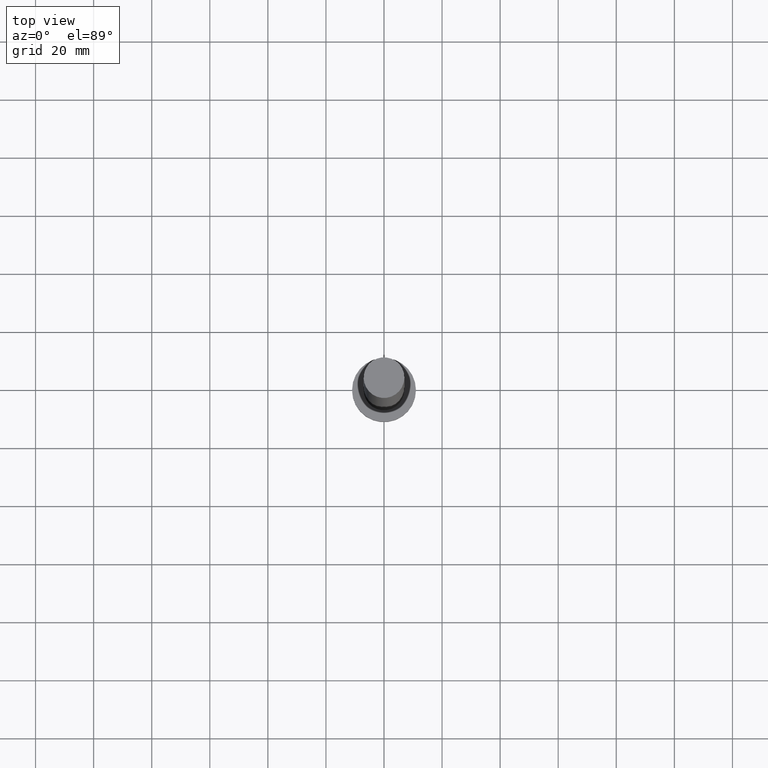
[diagram: clean part render]
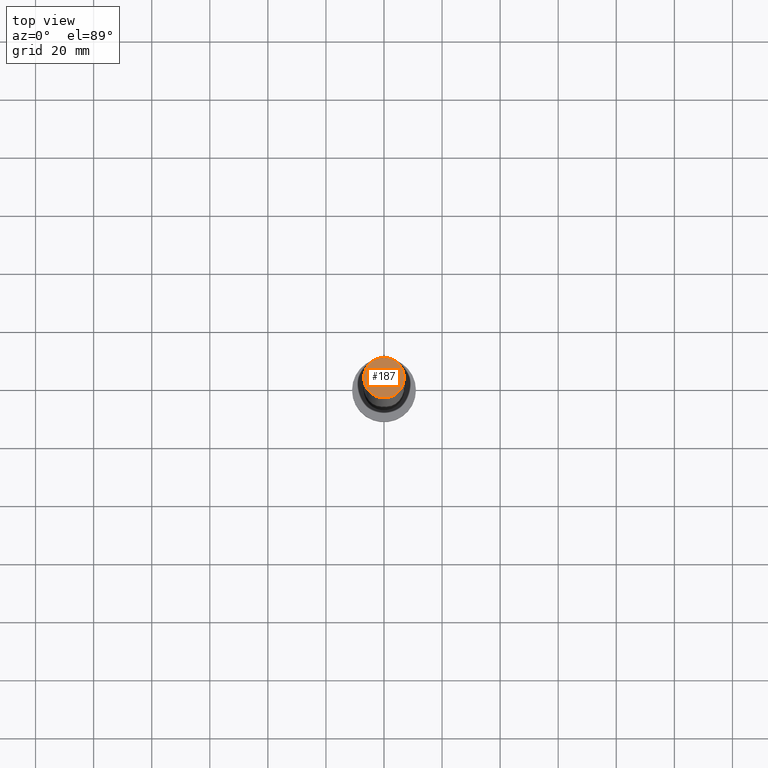
[diagram: same view with one face highlighted and labeled with its STEP entity id]
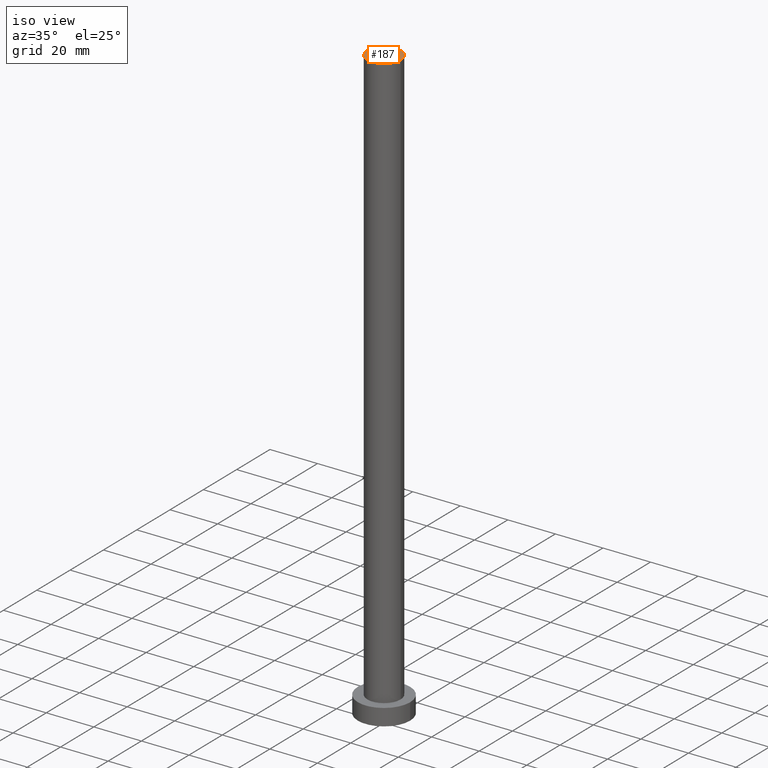
[diagram: same view with one face highlighted and labeled with its STEP entity id]
A machine part, top view. The second image highlights one B-rep face of the part: STEP entity #187.
A second angle (iso view) of the same face is appended — the face is thin or edge-on in the first view.
In plain terms, the highlighted planar face has unit normal (0, 0, 1).
Its self-contained STEP definition (entity closure, byte-faithful):
#7 = PLANE ( 'NONE',  #41 ) ;
#11 = ORIENTED_EDGE ( 'NONE', *, *, #94, .T. ) ;
#41 = AXIS2_PLACEMENT_3D ( 'NONE', #129, #128, #211 ) ;
#55 = CIRCLE ( 'NONE', #83, 7.000000000000000888 ) ;
#60 = VERTEX_POINT ( 'NONE', #249 ) ;
#62 = DIRECTION ( 'NONE',  ( 0.000000000000000000, 0.000000000000000000, 1.000000000000000000 ) ) ;
#63 = CARTESIAN_POINT ( 'NONE',  ( 0.000000000000000000, 0.000000000000000000, 250.0000000000000000 ) ) ;
#74 = VERTEX_POINT ( 'NONE', #252 ) ;
#77 = ORIENTED_EDGE ( 'NONE', *, *, #120, .T. ) ;
#83 = AXIS2_PLACEMENT_3D ( 'NONE', #63, #232, #233 ) ;
#94 = EDGE_CURVE ( 'NONE', #60, #74, #55, .T. ) ;
#97 = EDGE_LOOP ( 'NONE', ( #77, #11 ) ) ;
#105 = CIRCLE ( 'NONE', #140, 7.000000000000000888 ) ;
#107 = CARTESIAN_POINT ( 'NONE',  ( 0.000000000000000000, 0.000000000000000000, 250.0000000000000000 ) ) ;
#120 = EDGE_CURVE ( 'NONE', #74, #60, #105, .T. ) ;
#123 = DIRECTION ( 'NONE',  ( 1.000000000000000000, 0.000000000000000000, 0.000000000000000000 ) ) ;
#128 = DIRECTION ( 'NONE',  ( 0.000000000000000000, 0.000000000000000000, 1.000000000000000000 ) ) ;
#129 = CARTESIAN_POINT ( 'NONE',  ( 0.000000000000000000, 0.000000000000000000, 250.0000000000000000 ) ) ;
#140 = AXIS2_PLACEMENT_3D ( 'NONE', #107, #62, #123 ) ;
#150 = FACE_OUTER_BOUND ( 'NONE', #97, .T. ) ;
#187 = ADVANCED_FACE ( 'NONE', ( #150 ), #7, .T. ) ;
#211 = DIRECTION ( 'NONE',  ( 1.000000000000000000, 0.000000000000000000, -0.000000000000000000 ) ) ;
#232 = DIRECTION ( 'NONE',  ( 0.000000000000000000, 0.000000000000000000, 1.000000000000000000 ) ) ;
#233 = DIRECTION ( 'NONE',  ( 1.000000000000000000, 0.000000000000000000, 0.000000000000000000 ) ) ;
#249 = CARTESIAN_POINT ( 'NONE',  ( 7.000000000000000888, 8.572527594031474176E-16, 250.0000000000000000 ) ) ;
#252 = CARTESIAN_POINT ( 'NONE',  ( -7.000000000000000888, 0.000000000000000000, 250.0000000000000000 ) ) ;